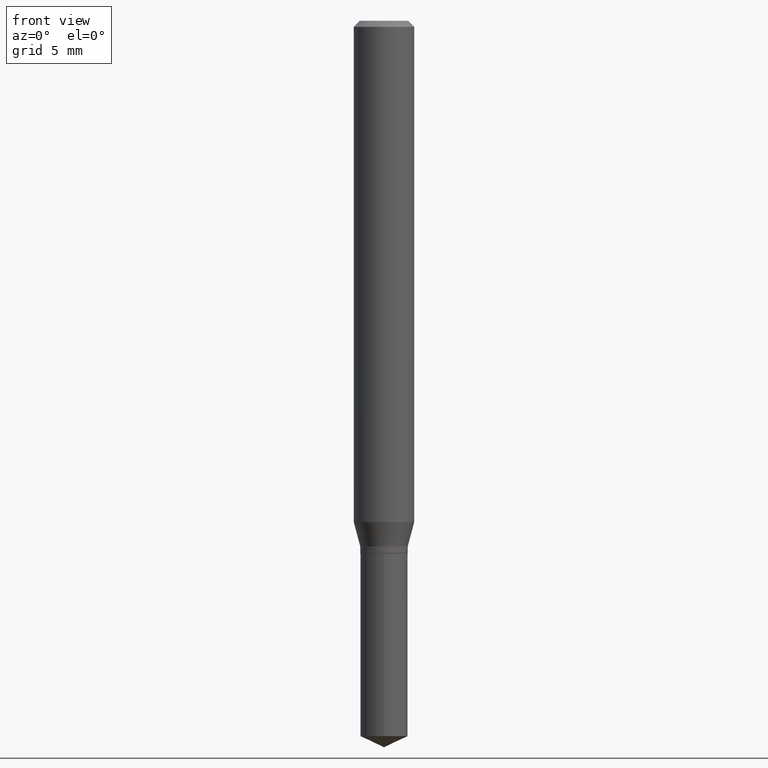
[diagram: clean part render]
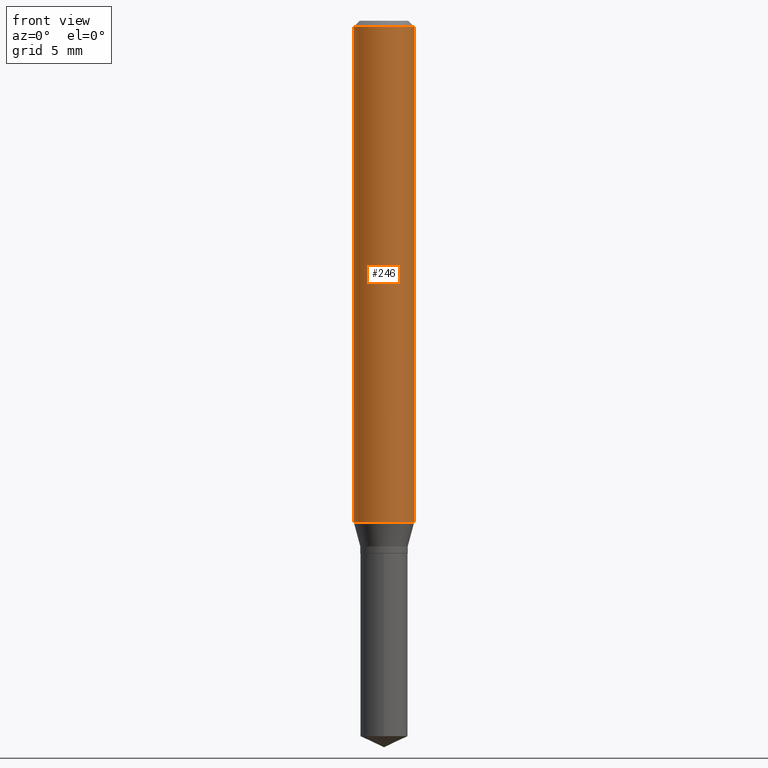
[diagram: same view with one face highlighted and labeled with its STEP entity id]
A machine part, front view. The second image highlights one B-rep face of the part: STEP entity #246.
In plain terms, the highlighted cylindrical surface (edge-blend (fillet) strip) has radius 1.5875 mm, axis along (-0, 0, 1).
Its self-contained STEP definition (entity closure, byte-faithful):
#3 = DIRECTION ( 'NONE',  ( -2.445468806185136877E-29, 3.491481338843145188E-15, 1.000000000000000000 ) ) ;
#4 = CARTESIAN_POINT ( 'NONE',  ( 0.000000000000000000, 0.000000000000000000, 0.000000000000000000 ) ) ;
#18 = EDGE_LOOP ( 'NONE', ( #169, #109, #485, #393 ) ) ;
#36 = DIRECTION ( 'NONE',  ( 1.000000000000000000, -6.982962677686264344E-15, 0.000000000000000000 ) ) ;
#57 = CARTESIAN_POINT ( 'NONE',  ( 0.06250000000000000000, -4.800786840909313294E-16, -0.01250000000000008916 ) ) ;
#78 = DIRECTION ( 'NONE',  ( -2.445468806185136877E-29, 3.491481338843145188E-15, 1.000000000000000000 ) ) ;
#87 = CARTESIAN_POINT ( 'NONE',  ( -0.06250000000000000000, -1.384429793226810224E-15, -0.01250000000000008916 ) ) ;
#88 = CARTESIAN_POINT ( 'NONE',  ( 2.530858008607123662E-29, -3.613394489418208092E-15, -1.034917314097819840 ) ) ;
#92 = VECTOR ( 'NONE', #3, 39.37007874015748143 ) ;
#99 = AXIS2_PLACEMENT_3D ( 'NONE', #88, #281, #36 ) ;
#109 = ORIENTED_EDGE ( 'NONE', *, *, #250, .T. ) ;
#128 = AXIS2_PLACEMENT_3D ( 'NONE', #170, #324, #468 ) ;
#148 = CARTESIAN_POINT ( 'NONE',  ( -0.06250000000000012490, -3.169305279568144687E-15, -1.034917314097819840 ) ) ;
#151 = AXIS2_PLACEMENT_3D ( 'NONE', #4, #243, #163 ) ;
#163 = DIRECTION ( 'NONE',  ( 1.000000000000000000, -6.982962677686266711E-15, 4.876176775795935793E-29 ) ) ;
#169 = ORIENTED_EDGE ( 'NONE', *, *, #458, .F. ) ;
#170 = CARTESIAN_POINT ( 'NONE',  ( 3.056836007731442729E-31, -4.364351673553962300E-17, -0.01250000000000008916 ) ) ;
#229 = LINE ( 'NONE', #233, #294 ) ;
#232 = FACE_OUTER_BOUND ( 'NONE', #18, .T. ) ;
#233 = CARTESIAN_POINT ( 'NONE',  ( 0.06250000000000006939, -4.364351673553921624E-16, 3.047610484872463374E-30 ) ) ;
#240 = CYLINDRICAL_SURFACE ( 'NONE', #151, 0.06250000000000006939 ) ;
#243 = DIRECTION ( 'NONE',  ( -2.445468806185136597E-29, 3.491481338843145583E-15, 1.000000000000000000 ) ) ;
#246 = ADVANCED_FACE ( 'NONE', ( #232 ), #240, .T. ) ;
#250 = EDGE_CURVE ( 'NONE', #466, #254, #306, .T. ) ;
#251 = VERTEX_POINT ( 'NONE', #87 ) ;
#254 = VERTEX_POINT ( 'NONE', #384 ) ;
#281 = DIRECTION ( 'NONE',  ( -2.445468806185136597E-29, 3.491481338843145583E-15, 1.000000000000000000 ) ) ;
#294 = VECTOR ( 'NONE', #78, 39.37007874015748143 ) ;
#306 = CIRCLE ( 'NONE', #99, 0.06250000000000012490 ) ;
#324 = DIRECTION ( 'NONE',  ( -2.445468806185136597E-29, 3.491481338843145583E-15, 1.000000000000000000 ) ) ;
#343 = CIRCLE ( 'NONE', #128, 0.06250000000000000000 ) ;
#384 = CARTESIAN_POINT ( 'NONE',  ( 0.06250000000000012490, -4.049829656773600550E-15, -1.034917314097819840 ) ) ;
#393 = ORIENTED_EDGE ( 'NONE', *, *, #427, .F. ) ;
#402 = LINE ( 'NONE', #445, #92 ) ;
#427 = EDGE_CURVE ( 'NONE', #251, #432, #343, .T. ) ;
#432 = VERTEX_POINT ( 'NONE', #57 ) ;
#445 = CARTESIAN_POINT ( 'NONE',  ( -0.06250000000000006939, 4.440892098500631092E-16, -3.074334431409319267E-30 ) ) ;
#458 = EDGE_CURVE ( 'NONE', #466, #251, #402, .T. ) ;
#466 = VERTEX_POINT ( 'NONE', #148 ) ;
#468 = DIRECTION ( 'NONE',  ( 1.000000000000000000, -6.982962677686266711E-15, 0.000000000000000000 ) ) ;
#485 = ORIENTED_EDGE ( 'NONE', *, *, #487, .T. ) ;
#487 = EDGE_CURVE ( 'NONE', #254, #432, #229, .T. ) ;